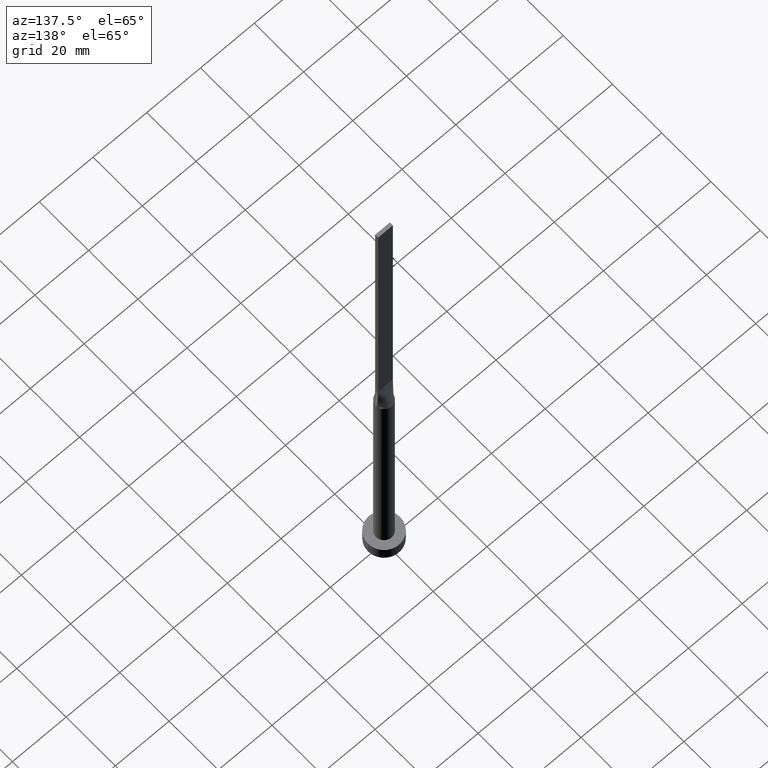
[diagram: clean part render]
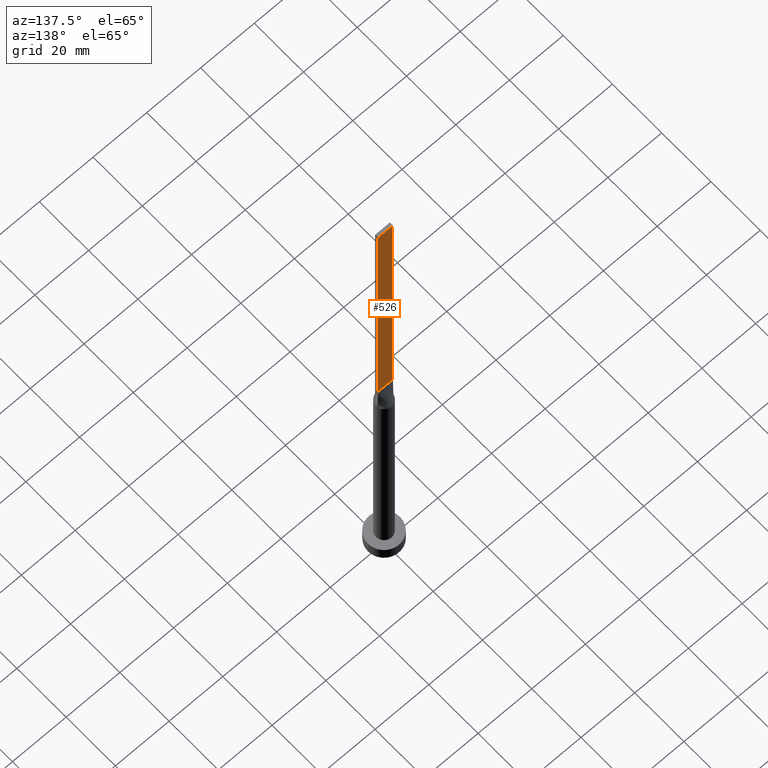
[diagram: same view with one face highlighted and labeled with its STEP entity id]
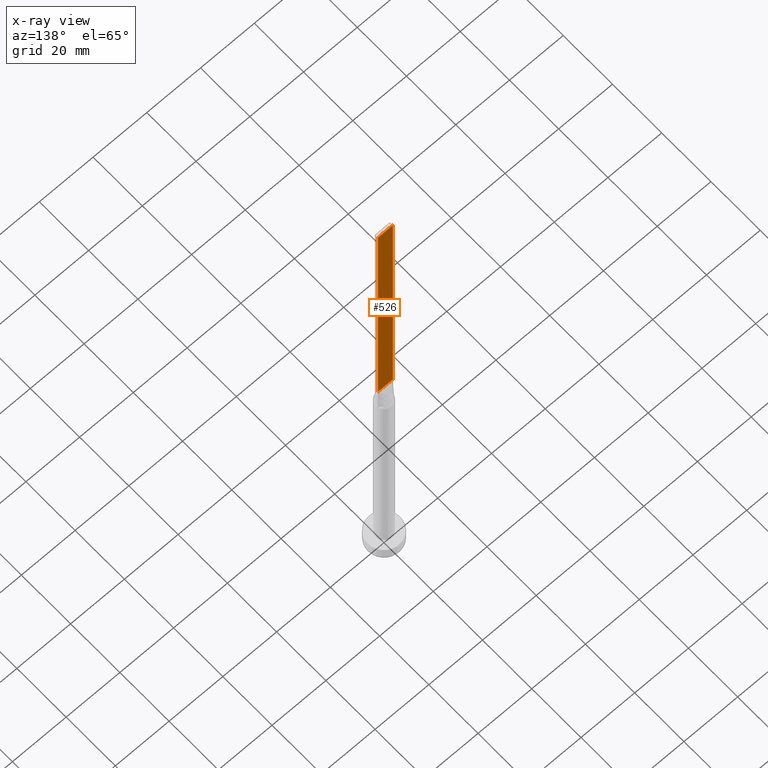
[diagram: x-ray of the same camera — body ghosted, the highlighted face saturated]
A machine part, auxiliary view. The second image highlights one B-rep face of the part: STEP entity #526.
The next image is the same camera in x-ray: the body ghosted, the highlighted face saturated — about 0% of this face is hidden behind the body in this view.
In plain terms, the highlighted planar face has unit normal (0, -1, 0).
Its self-contained STEP definition (entity closure, byte-faithful):
#7 = LINE ( 'NONE', #491, #161 ) ;
#15 = DIRECTION ( 'NONE',  ( 0.000000000000000000, -1.000000000000000000, 0.000000000000000000 ) ) ;
#20 = EDGE_CURVE ( 'NONE', #503, #183, #210, .T. ) ;
#34 = FACE_OUTER_BOUND ( 'NONE', #343, .T. ) ;
#36 = CARTESIAN_POINT ( 'NONE',  ( 2.750000000000000000, 0.6000000000000001998, 200.0000000000000000 ) ) ;
#56 = EDGE_CURVE ( 'NONE', #305, #183, #492, .T. ) ;
#86 = VECTOR ( 'NONE', #255, 1000.000000000000000 ) ;
#92 = DIRECTION ( 'NONE',  ( -1.000000000000000000, 0.000000000000000000, 0.000000000000000000 ) ) ;
#94 = PLANE ( 'NONE',  #468 ) ;
#161 = VECTOR ( 'NONE', #92, 1000.000000000000000 ) ;
#177 = DIRECTION ( 'NONE',  ( 0.000000000000000000, -0.000000000000000000, -1.000000000000000000 ) ) ;
#180 = ORIENTED_EDGE ( 'NONE', *, *, #381, .F. ) ;
#183 = VERTEX_POINT ( 'NONE', #419 ) ;
#185 = VECTOR ( 'NONE', #385, 1000.000000000000000 ) ;
#210 = LINE ( 'NONE', #271, #465 ) ;
#238 = LINE ( 'NONE', #36, #86 ) ;
#255 = DIRECTION ( 'NONE',  ( -0.000000000000000000, -0.000000000000000000, -1.000000000000000000 ) ) ;
#271 = CARTESIAN_POINT ( 'NONE',  ( -2.750000000000000000, 0.6000000000000001998, 200.0000000000000000 ) ) ;
#305 = VERTEX_POINT ( 'NONE', #571 ) ;
#343 = EDGE_LOOP ( 'NONE', ( #486, #368, #180, #568 ) ) ;
#348 = EDGE_CURVE ( 'NONE', #544, #305, #238, .T. ) ;
#368 = ORIENTED_EDGE ( 'NONE', *, *, #20, .F. ) ;
#381 = EDGE_CURVE ( 'NONE', #544, #503, #7, .T. ) ;
#385 = DIRECTION ( 'NONE',  ( -1.000000000000000000, -0.000000000000000000, -0.000000000000000000 ) ) ;
#408 = CARTESIAN_POINT ( 'NONE',  ( 2.750000000000000000, 0.6000000000000001998, 200.0000000000000000 ) ) ;
#410 = CARTESIAN_POINT ( 'NONE',  ( 2.750000000000000000, 0.6000000000000001998, 200.0000000000000000 ) ) ;
#419 = CARTESIAN_POINT ( 'NONE',  ( -2.750000000000000000, 0.6000000000000001998, 100.0000000000000000 ) ) ;
#427 = CARTESIAN_POINT ( 'NONE',  ( -2.750000000000000000, 0.6000000000000001998, 100.0000000000000000 ) ) ;
#465 = VECTOR ( 'NONE', #579, 1000.000000000000000 ) ;
#468 = AXIS2_PLACEMENT_3D ( 'NONE', #410, #15, #177 ) ;
#486 = ORIENTED_EDGE ( 'NONE', *, *, #56, .T. ) ;
#491 = CARTESIAN_POINT ( 'NONE',  ( 2.750000000000000000, 0.6000000000000001998, 200.0000000000000000 ) ) ;
#492 = LINE ( 'NONE', #427, #185 ) ;
#503 = VERTEX_POINT ( 'NONE', #516 ) ;
#516 = CARTESIAN_POINT ( 'NONE',  ( -2.750000000000000000, 0.6000000000000001998, 200.0000000000000000 ) ) ;
#526 = ADVANCED_FACE ( 'NONE', ( #34 ), #94, .F. ) ;
#544 = VERTEX_POINT ( 'NONE', #408 ) ;
#568 = ORIENTED_EDGE ( 'NONE', *, *, #348, .T. ) ;
#571 = CARTESIAN_POINT ( 'NONE',  ( 2.750000000000000000, 0.6000000000000001998, 100.0000000000000000 ) ) ;
#579 = DIRECTION ( 'NONE',  ( -0.000000000000000000, -0.000000000000000000, -1.000000000000000000 ) ) ;